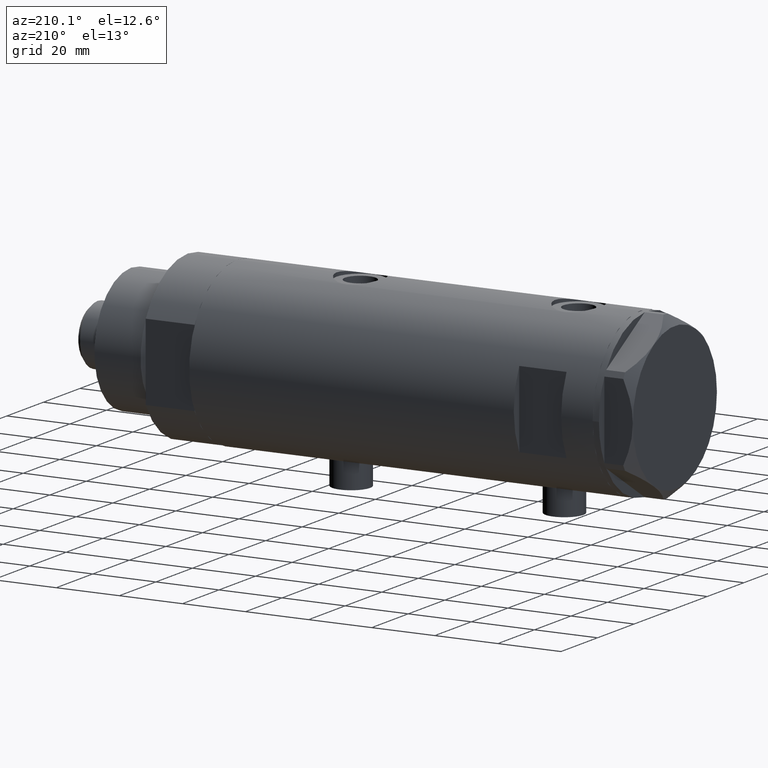
[diagram: clean part render]
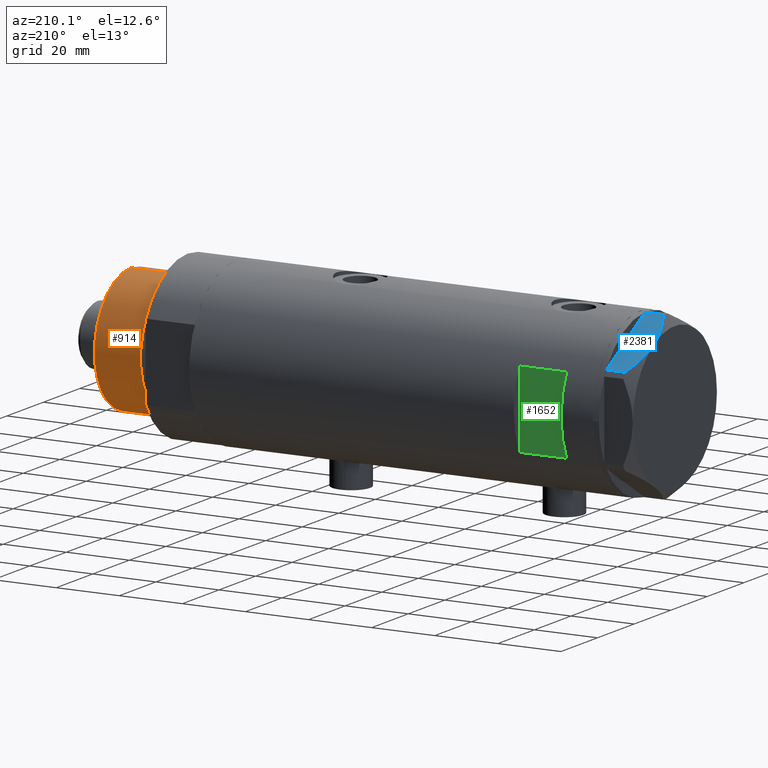
[diagram: same view with three faces highlighted in distinct colors, each labeled with its STEP entity id]
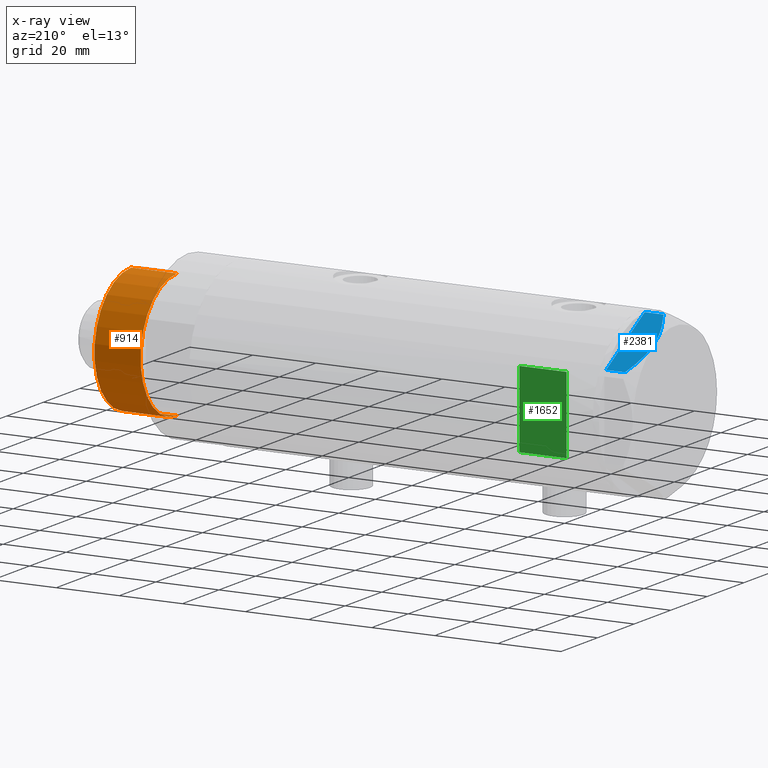
[diagram: x-ray of the same camera — body ghosted, the three highlighted faces saturated]
A machine part, auxiliary view with three faces highlighted in distinct colors.
The next image is the same camera in x-ray (body ghosted, the three faces saturated) — at least one of them is partly hidden behind the body in this view.
Their STEP definitions:

[orange] entity #914 — the highlighted cylindrical surface (partial cylindrical patch) has radius 20 mm, axis along (-1, -0, 0).
#22 = EDGE_CURVE ( 'NONE', #3302, #2899, #3334, .T. ) ;
#81 = DIRECTION ( 'NONE',  ( 0.000000000000000000, 0.000000000000000000, 1.000000000000000000 ) ) ;
#106 = AXIS2_PLACEMENT_3D ( 'NONE', #427, #884, #2781 ) ;
#122 = LINE ( 'NONE', #409, #1682 ) ;
#409 = CARTESIAN_POINT ( 'NONE',  ( -19.99999999999999645, 0.000000000000000000, 33.50000000000000000 ) ) ;
#427 = CARTESIAN_POINT ( 'NONE',  ( 0.000000000000000000, 0.000000000000000000, 18.87384048104053846 ) ) ;
#686 = CARTESIAN_POINT ( 'NONE',  ( 0.000000000000000000, 0.000000000000000000, 33.50000000000000000 ) ) ;
#832 = AXIS2_PLACEMENT_3D ( 'NONE', #686, #2513, #3643 ) ;
#884 = DIRECTION ( 'NONE',  ( -0.000000000000000000, -0.000000000000000000, 1.000000000000000000 ) ) ;
#912 = ORIENTED_EDGE ( 'NONE', *, *, #1035, .F. ) ;
#914 = ADVANCED_FACE ( 'NONE', ( #4422 ), #4021, .T. ) ;
#951 = VERTEX_POINT ( 'NONE', #3246 ) ;
#1035 = EDGE_CURVE ( 'NONE', #951, #2899, #122, .T. ) ;
#1201 = DIRECTION ( 'NONE',  ( 1.000000000000000000, 0.000000000000000000, 0.000000000000000000 ) ) ;
#1290 = EDGE_CURVE ( 'NONE', #3964, #951, #4819, .T. ) ;
#1425 = ORIENTED_EDGE ( 'NONE', *, *, #22, .T. ) ;
#1682 = VECTOR ( 'NONE', #4551, 1000.000000000000000 ) ;
#2020 = LINE ( 'NONE', #4660, #4301 ) ;
#2151 = CARTESIAN_POINT ( 'NONE',  ( 19.99999999999999645, 2.449293598294706119E-15, 33.50000000000000000 ) ) ;
#2299 = CARTESIAN_POINT ( 'NONE',  ( 19.99999999999999645, 2.449293598294706119E-15, 18.87384048104053846 ) ) ;
#2399 = ORIENTED_EDGE ( 'NONE', *, *, #4746, .T. ) ;
#2513 = DIRECTION ( 'NONE',  ( -0.000000000000000000, -0.000000000000000000, -1.000000000000000000 ) ) ;
#2686 = EDGE_LOOP ( 'NONE', ( #4748, #2399, #1425, #912 ) ) ;
#2730 = AXIS2_PLACEMENT_3D ( 'NONE', #4588, #81, #1201 ) ;
#2781 = DIRECTION ( 'NONE',  ( 1.000000000000000000, 0.000000000000000000, 0.000000000000000000 ) ) ;
#2783 = DIRECTION ( 'NONE',  ( -0.000000000000000000, -0.000000000000000000, -1.000000000000000000 ) ) ;
#2899 = VERTEX_POINT ( 'NONE', #3168 ) ;
#3168 = CARTESIAN_POINT ( 'NONE',  ( -19.99999999999999645, 0.000000000000000000, 18.87384048104053846 ) ) ;
#3246 = CARTESIAN_POINT ( 'NONE',  ( -19.99999999999999645, 0.000000000000000000, 33.50000000000000000 ) ) ;
#3302 = VERTEX_POINT ( 'NONE', #2299 ) ;
#3334 = CIRCLE ( 'NONE', #106, 19.99999999999999645 ) ;
#3643 = DIRECTION ( 'NONE',  ( -1.000000000000000000, 0.000000000000000000, 0.000000000000000000 ) ) ;
#3964 = VERTEX_POINT ( 'NONE', #2151 ) ;
#4021 = CYLINDRICAL_SURFACE ( 'NONE', #832, 19.99999999999999645 ) ;
#4301 = VECTOR ( 'NONE', #2783, 1000.000000000000000 ) ;
#4422 = FACE_OUTER_BOUND ( 'NONE', #2686, .T. ) ;
#4551 = DIRECTION ( 'NONE',  ( -0.000000000000000000, -0.000000000000000000, -1.000000000000000000 ) ) ;
#4588 = CARTESIAN_POINT ( 'NONE',  ( 0.000000000000000000, 0.000000000000000000, 33.50000000000000000 ) ) ;
#4660 = CARTESIAN_POINT ( 'NONE',  ( 19.99999999999999645, 2.449293598294706119E-15, 33.50000000000000000 ) ) ;
#4746 = EDGE_CURVE ( 'NONE', #3964, #3302, #2020, .T. ) ;
#4748 = ORIENTED_EDGE ( 'NONE', *, *, #1290, .F. ) ;
#4819 = CIRCLE ( 'NONE', #2730, 19.99999999999999645 ) ;

[blue] entity #2381 — the highlighted planar face has unit normal (-0, -0.5, -0.866).
#56 = CARTESIAN_POINT ( 'NONE',  ( 17.32831362639727146, -16.55360584591992890, 8.040681765829337024 ) ) ;
#76 = B_SPLINE_CURVE_WITH_KNOTS ( 'NONE', 3,
 ( #3440, #3487, #4592, #56, #104, #3063, #1605, #3108, #4616, #2757 ),
 .UNSPECIFIED., .F., .F.,
 ( 4, 2, 2, 2, 4 ),
 ( 0.01376519981810312224, 0.01998941321701588197, 0.02154546656674407104, 0.02310151991647226011, 0.02621362661592864518 ),
 .UNSPECIFIED. ) ;
#84 = DIRECTION ( 'NONE',  ( -0.5000000000000071054, 0.8660254037844345998, 0.000000000000000000 ) ) ;
#104 = CARTESIAN_POINT ( 'NONE',  ( 17.77001848220201907, -16.29858742851870090, 7.892128867758446908 ) ) ;
#138 = VECTOR ( 'NONE', #168, 1000.000000000000000 ) ;
#168 = DIRECTION ( 'NONE',  ( 0.000000000000000000, 0.000000000000000000, 1.000000000000000000 ) ) ;
#184 = CARTESIAN_POINT ( 'NONE',  ( 9.197898616903062319, -21.24770314027487572, 8.852712638955805957 ) ) ;
#256 = VERTEX_POINT ( 'NONE', #310 ) ;
#307 = ORIENTED_EDGE ( 'NONE', *, *, #1495, .T. ) ;
#310 = CARTESIAN_POINT ( 'NONE',  ( 0.9699484522387654684, -25.99811238272272718, 0.000000000000000000 ) ) ;
#376 = LINE ( 'NONE', #4069, #2512 ) ;
#412 = CARTESIAN_POINT ( 'NONE',  ( 11.04134848610953235, -20.18338686205092714, 9.000000000000095923 ) ) ;
#417 = EDGE_CURVE ( 'NONE', #1043, #3488, #2166, .T. ) ;
#428 = LINE ( 'NONE', #4567, #2172 ) ;
#480 = LINE ( 'NONE', #4658, #4672 ) ;
#502 = ORIENTED_EDGE ( 'NONE', *, *, #417, .F. ) ;
#827 = PLANE ( 'NONE',  #3920 ) ;
#862 = DIRECTION ( 'NONE',  ( 0.8660254037844345998, 0.5000000000000069944, 0.000000000000000000 ) ) ;
#870 = CARTESIAN_POINT ( 'NONE',  ( 4.320186229910052411, -24.06385169993491857, 7.629374868826107381 ) ) ;
#937 = EDGE_LOOP ( 'NONE', ( #502, #1829, #1655, #1431, #307, #2062, #4320 ) ) ;
#1043 = VERTEX_POINT ( 'NONE', #1190 ) ;
#1173 = CARTESIAN_POINT ( 'NONE',  ( 10.58093321976977386, -20.44920774001120733, 8.981686407609503320 ) ) ;
#1184 = CARTESIAN_POINT ( 'NONE',  ( 22.03005154776152352, -13.83905619136116449, 5.983800287807632401 ) ) ;
#1190 = CARTESIAN_POINT ( 'NONE',  ( 0.9699484522386233598, -25.99811238272281244, 5.983800287807552465 ) ) ;
#1384 = CARTESIAN_POINT ( 'NONE',  ( 1.854543075583504180E-13, -26.55811238272274366, 0.000000000000000000 ) ) ;
#1431 = ORIENTED_EDGE ( 'NONE', *, *, #4552, .T. ) ;
#1459 = VECTOR ( 'NONE', #3340, 999.9999999999998863 ) ;
#1495 = EDGE_CURVE ( 'NONE', #2840, #2175, #480, .T. ) ;
#1543 = CARTESIAN_POINT ( 'NONE',  ( 6.946777556903783513, -22.54738849024392877, 8.426899937603783641 ) ) ;
#1594 = CARTESIAN_POINT ( 'NONE',  ( 7.836767740116735048, -22.03355241838978884, 8.637313967156950767 ) ) ;
#1605 = CARTESIAN_POINT ( 'NONE',  ( 19.07486218897004093, -15.54523556316577704, 7.397272853991418096 ) ) ;
#1655 = ORIENTED_EDGE ( 'NONE', *, *, #1894, .T. ) ;
#1683 = CARTESIAN_POINT ( 'NONE',  ( 9.656518383329995459, -20.98291889467261129, 8.907842277728439839 ) ) ;
#1829 = ORIENTED_EDGE ( 'NONE', *, *, #2548, .T. ) ;
#1894 = EDGE_CURVE ( 'NONE', #256, #4663, #428, .T. ) ;
#1921 = VERTEX_POINT ( 'NONE', #1184 ) ;
#2062 = ORIENTED_EDGE ( 'NONE', *, *, #2866, .T. ) ;
#2166 = B_SPLINE_CURVE_WITH_KNOTS ( 'NONE', 3,
 ( #3505, #2681, #870, #1543, #1594, #184, #1683, #1173, #412, #3829 ),
 .UNSPECIFIED., .F., .F.,
 ( 4, 2, 2, 2, 4 ),
 ( 0.001228959670438524313, 0.007497079744270824901, 0.01063113978118697747, 0.01219816979964504985, 0.01376519981810312224 ),
 .UNSPECIFIED. ) ;
#2172 = VECTOR ( 'NONE', #4230, 999.9999999999998863 ) ;
#2175 = VERTEX_POINT ( 'NONE', #3215 ) ;
#2381 = ADVANCED_FACE ( 'NONE', ( #4197 ), #827, .F. ) ;
#2512 = VECTOR ( 'NONE', #3277, 1000.000000000000000 ) ;
#2548 = EDGE_CURVE ( 'NONE', #1043, #256, #376, .T. ) ;
#2681 = CARTESIAN_POINT ( 'NONE',  ( 2.626494320835812690, -25.04170517956324460, 6.877782426143459915 ) ) ;
#2757 = CARTESIAN_POINT ( 'NONE',  ( 22.03005154776152352, -13.83905619136116449, 5.983800287807632401 ) ) ;
#2840 = VERTEX_POINT ( 'NONE', #4558 ) ;
#2850 = CARTESIAN_POINT ( 'NONE',  ( 22.03005154776152352, -13.83905619136116449, 9.000000000000000000 ) ) ;
#2866 = EDGE_CURVE ( 'NONE', #2175, #1921, #4283, .T. ) ;
#3063 = CARTESIAN_POINT ( 'NONE',  ( 18.64279229058404752, -15.79469123530767227, 7.570552255229726413 ) ) ;
#3108 = CARTESIAN_POINT ( 'NONE',  ( 20.35958612119336308, -14.80349985506228094, 6.844201024438393510 ) ) ;
#3215 = CARTESIAN_POINT ( 'NONE',  ( 22.03005154776152708, -13.83905619136116449, 0.000000000000000000 ) ) ;
#3229 = DIRECTION ( 'NONE',  ( -0.8660254037844344888, -0.5000000000000069944, 0.000000000000000000 ) ) ;
#3277 = DIRECTION ( 'NONE',  ( 0.000000000000000000, 0.000000000000000000, -1.000000000000000000 ) ) ;
#3340 = DIRECTION ( 'NONE',  ( 0.8660254037844345998, 0.5000000000000069944, 0.000000000000000000 ) ) ;
#3393 = CARTESIAN_POINT ( 'NONE',  ( 1.000000000000106803, -25.98076211353316367, 0.000000000000000000 ) ) ;
#3440 = CARTESIAN_POINT ( 'NONE',  ( 11.50000000000018296, -19.91858428704203732, 9.000000000000000000 ) ) ;
#3463 = CARTESIAN_POINT ( 'NONE',  ( 1.854543075583504180E-13, -26.55811238272274366, 9.000000000000000000 ) ) ;
#3487 = CARTESIAN_POINT ( 'NONE',  ( 13.32175508098997518, -18.86679350063488059, 9.000000000000094147 ) ) ;
#3488 = VERTEX_POINT ( 'NONE', #3789 ) ;
#3505 = CARTESIAN_POINT ( 'NONE',  ( 0.9699484522386233598, -25.99811238272281244, 5.983800287807552465 ) ) ;
#3660 = LINE ( 'NONE', #1384, #1459 ) ;
#3774 = EDGE_CURVE ( 'NONE', #3488, #1921, #76, .T. ) ;
#3789 = CARTESIAN_POINT ( 'NONE',  ( 11.50000000000018296, -19.91858428704203732, 9.000000000000000000 ) ) ;
#3829 = CARTESIAN_POINT ( 'NONE',  ( 11.50000000000018296, -19.91858428704203732, 9.000000000000000000 ) ) ;
#3920 = AXIS2_PLACEMENT_3D ( 'NONE', #3463, #84, #3229 ) ;
#4069 = CARTESIAN_POINT ( 'NONE',  ( 0.9699484522387652463, -25.99811238272272718, 9.000000000000000000 ) ) ;
#4197 = FACE_OUTER_BOUND ( 'NONE', #937, .T. ) ;
#4230 = DIRECTION ( 'NONE',  ( 0.8660254037844345998, 0.5000000000000069944, 0.000000000000000000 ) ) ;
#4283 = LINE ( 'NONE', #2850, #138 ) ;
#4320 = ORIENTED_EDGE ( 'NONE', *, *, #3774, .F. ) ;
#4552 = EDGE_CURVE ( 'NONE', #4663, #2840, #3660, .T. ) ;
#4558 = CARTESIAN_POINT ( 'NONE',  ( 22.00000000000017053, -13.85640646055075464, 0.000000000000000000 ) ) ;
#4567 = CARTESIAN_POINT ( 'NONE',  ( 1.854543075583504180E-13, -26.55811238272274366, 0.000000000000000000 ) ) ;
#4592 = CARTESIAN_POINT ( 'NONE',  ( 15.11535457301044261, -17.83125835109846591, 8.707651728477005193 ) ) ;
#4616 = CARTESIAN_POINT ( 'NONE',  ( 21.20080365460326988, -14.31782268570101735, 6.431317509509397290 ) ) ;
#4658 = CARTESIAN_POINT ( 'NONE',  ( 1.854543075583504180E-13, -26.55811238272274366, 0.000000000000000000 ) ) ;
#4663 = VERTEX_POINT ( 'NONE', #3393 ) ;
#4672 = VECTOR ( 'NONE', #862, 999.9999999999998863 ) ;

[green] entity #1652 — the highlighted planar face has unit normal (0, -1, -0).
#72 = FACE_OUTER_BOUND ( 'NONE', #3307, .T. ) ;
#115 = CARTESIAN_POINT ( 'NONE',  ( -26.00000000000000355, 23.00000000000000355, 53.94999999999999574 ) ) ;
#186 = LINE ( 'NONE', #115, #1778 ) ;
#401 = CARTESIAN_POINT ( 'NONE',  ( 12.12435565298214080, 23.00000000000000355, 53.94999999999999574 ) ) ;
#432 = AXIS2_PLACEMENT_3D ( 'NONE', #3885, #492, #616 ) ;
#492 = DIRECTION ( 'NONE',  ( 0.000000000000000000, -1.000000000000000000, -0.000000000000000000 ) ) ;
#578 = DIRECTION ( 'NONE',  ( 0.000000000000000000, 0.000000000000000000, 1.000000000000000000 ) ) ;
#616 = DIRECTION ( 'NONE',  ( 0.000000000000000000, 0.000000000000000000, -1.000000000000000000 ) ) ;
#652 = DIRECTION ( 'NONE',  ( -0.000000000000000000, -0.000000000000000000, -1.000000000000000000 ) ) ;
#954 = CARTESIAN_POINT ( 'NONE',  ( -12.12435565298214080, 23.00000000000000355, -63.95000000000000995 ) ) ;
#1028 = LINE ( 'NONE', #954, #2573 ) ;
#1141 = EDGE_CURVE ( 'NONE', #3132, #1329, #1028, .T. ) ;
#1329 = VERTEX_POINT ( 'NONE', #4634 ) ;
#1412 = CARTESIAN_POINT ( 'NONE',  ( -12.12435565298214080, 23.00000000000000355, 38.94999999999999574 ) ) ;
#1652 = ADVANCED_FACE ( 'NONE', ( #72 ), #1973, .F. ) ;
#1685 = DIRECTION ( 'NONE',  ( 1.000000000000000000, -0.000000000000000000, -0.000000000000000000 ) ) ;
#1778 = VECTOR ( 'NONE', #1685, 1000.000000000000000 ) ;
#1973 = PLANE ( 'NONE',  #432 ) ;
#2027 = ORIENTED_EDGE ( 'NONE', *, *, #1141, .T. ) ;
#2431 = VECTOR ( 'NONE', #652, 1000.000000000000000 ) ;
#2573 = VECTOR ( 'NONE', #578, 1000.000000000000000 ) ;
#2717 = CARTESIAN_POINT ( 'NONE',  ( -26.00000000000000355, 23.00000000000000355, 38.94999999999999574 ) ) ;
#3132 = VERTEX_POINT ( 'NONE', #1412 ) ;
#3247 = EDGE_CURVE ( 'NONE', #3132, #4740, #4206, .T. ) ;
#3307 = EDGE_LOOP ( 'NONE', ( #3949, #4702, #2027, #3406 ) ) ;
#3406 = ORIENTED_EDGE ( 'NONE', *, *, #4460, .T. ) ;
#3529 = VERTEX_POINT ( 'NONE', #401 ) ;
#3697 = LINE ( 'NONE', #4474, #2431 ) ;
#3761 = VECTOR ( 'NONE', #4180, 1000.000000000000000 ) ;
#3819 = CARTESIAN_POINT ( 'NONE',  ( 12.12435565298213724, 23.00000000000000355, 38.94999999999999574 ) ) ;
#3885 = CARTESIAN_POINT ( 'NONE',  ( -26.00000000000000355, 23.00000000000000355, 53.94999999999999574 ) ) ;
#3949 = ORIENTED_EDGE ( 'NONE', *, *, #4249, .T. ) ;
#4180 = DIRECTION ( 'NONE',  ( 1.000000000000000000, -0.000000000000000000, -0.000000000000000000 ) ) ;
#4206 = LINE ( 'NONE', #2717, #3761 ) ;
#4249 = EDGE_CURVE ( 'NONE', #3529, #4740, #3697, .T. ) ;
#4460 = EDGE_CURVE ( 'NONE', #1329, #3529, #186, .T. ) ;
#4474 = CARTESIAN_POINT ( 'NONE',  ( 12.12435565298214080, 23.00000000000000355, -63.95000000000000995 ) ) ;
#4634 = CARTESIAN_POINT ( 'NONE',  ( -12.12435565298214080, 23.00000000000000355, 53.94999999999999574 ) ) ;
#4702 = ORIENTED_EDGE ( 'NONE', *, *, #3247, .F. ) ;
#4740 = VERTEX_POINT ( 'NONE', #3819 ) ;